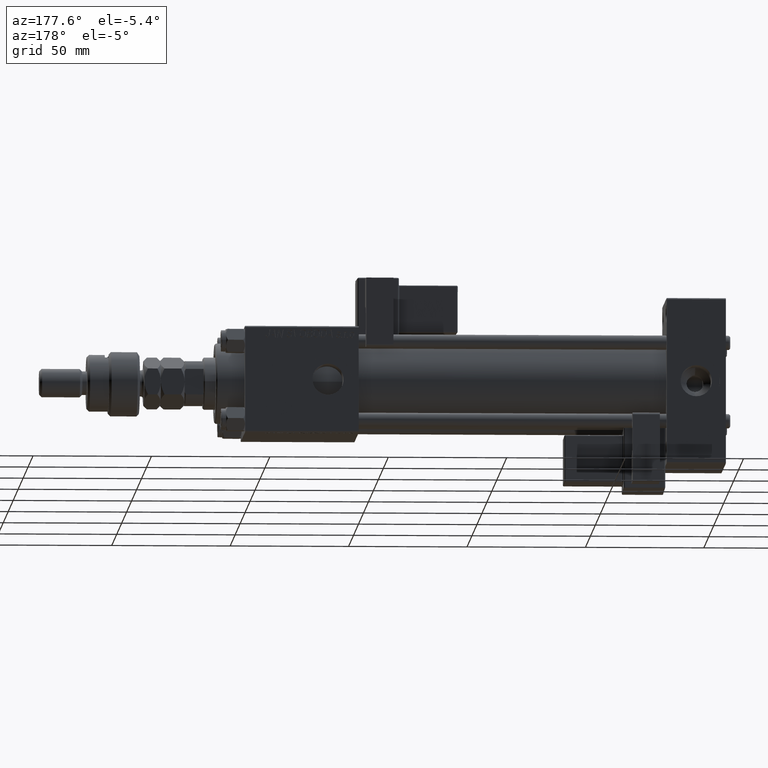
[diagram: clean part render]
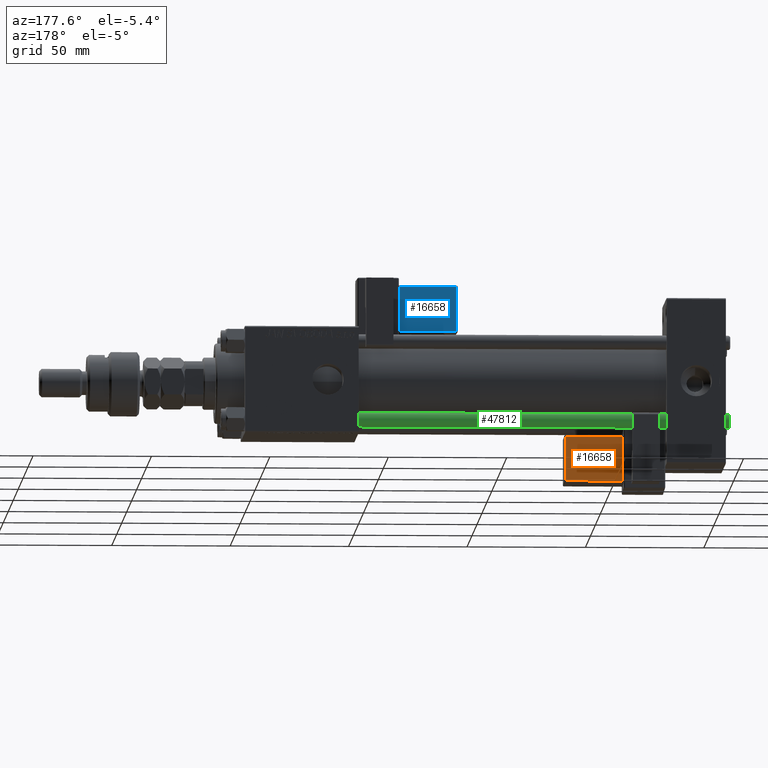
[diagram: same view with three faces highlighted in distinct colors, each labeled with its STEP entity id]
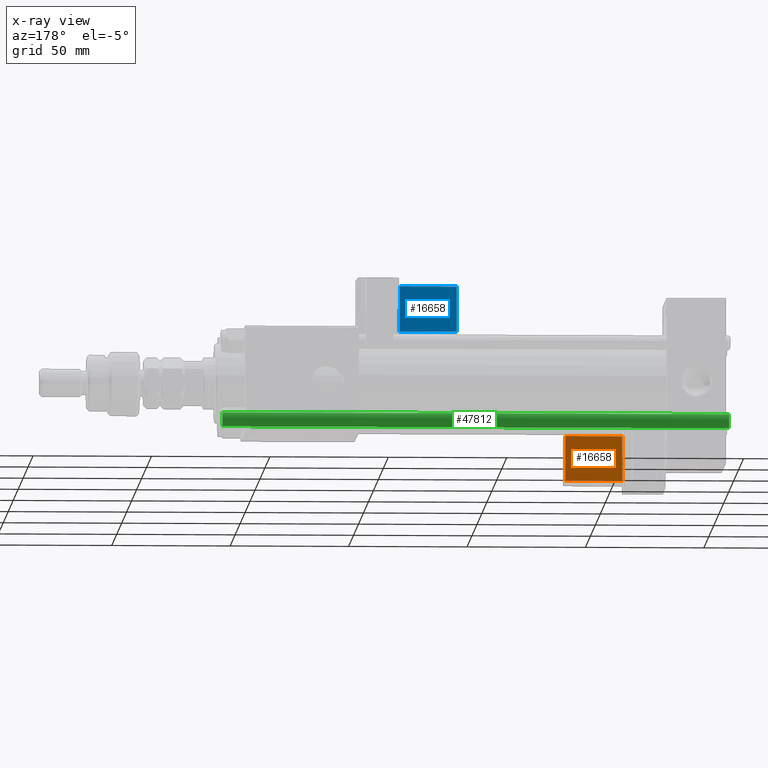
[diagram: x-ray of the same camera — body ghosted, the three highlighted faces saturated]
A machine part, auxiliary view with three faces highlighted in distinct colors.
The next image is the same camera in x-ray (body ghosted, the three faces saturated) — at least one of them is partly hidden behind the body in this view.
Their STEP definitions:

[orange] entity #16658 — the highlighted planar face has unit normal (0, -0.9994, -0.0353).
#1294 = DIRECTION ( 'NONE',  ( 1.734723475976807341E-16, -0.000000000000000000, -1.000000000000000000 ) ) ;
#3848 = ORIENTED_EDGE ( 'NONE', *, *, #5063, .T. ) ;
#4363 = CARTESIAN_POINT ( 'NONE',  ( 33.75000000000000000, -15.25000000000000000, 21.50000000000000355 ) ) ;
#4384 = EDGE_CURVE ( 'NONE', #24993, #46661, #35766, .T. ) ;
#4895 = VECTOR ( 'NONE', #34259, 1000.000000000000000 ) ;
#5063 = EDGE_CURVE ( 'NONE', #43074, #20846, #8944, .T. ) ;
#6064 = LINE ( 'NONE', #35823, #39503 ) ;
#6861 = CARTESIAN_POINT ( 'NONE',  ( 33.25000000000000000, -15.25000000000000000, 2.500000000000009326 ) ) ;
#8944 = LINE ( 'NONE', #25915, #4895 ) ;
#9380 = DIRECTION ( 'NONE',  ( 0.000000000000000000, -0.000000000000000000, -1.000000000000000000 ) ) ;
#9968 = DIRECTION ( 'NONE',  ( -1.000000000000000000, 0.000000000000000000, -1.334402673828313339E-16 ) ) ;
#16658 = ADVANCED_FACE ( 'NONE', ( #26906 ), #21627, .F. ) ;
#17041 = ORIENTED_EDGE ( 'NONE', *, *, #26236, .T. ) ;
#17444 = CARTESIAN_POINT ( 'NONE',  ( 33.75000000000000000, -15.25000000000000000, 22.00000000000000711 ) ) ;
#18581 = EDGE_CURVE ( 'NONE', #20846, #24993, #34391, .T. ) ;
#20558 = CARTESIAN_POINT ( 'NONE',  ( 33.25000000000000000, -15.25000000000000000, 21.50000000000000355 ) ) ;
#20846 = VERTEX_POINT ( 'NONE', #33451 ) ;
#21627 = PLANE ( 'NONE',  #41743 ) ;
#21811 = ORIENTED_EDGE ( 'NONE', *, *, #18581, .T. ) ;
#24598 = EDGE_LOOP ( 'NONE', ( #17041, #3848, #21811, #32092 ) ) ;
#24671 = DIRECTION ( 'NONE',  ( 1.000000000000000000, -0.000000000000000000, 1.334402673828313339E-16 ) ) ;
#24993 = VERTEX_POINT ( 'NONE', #20558 ) ;
#25915 = CARTESIAN_POINT ( 'NONE',  ( 9.250000000000001776, -15.25000000000000000, 22.00000000000000355 ) ) ;
#26236 = EDGE_CURVE ( 'NONE', #46661, #43074, #6064, .T. ) ;
#26906 = FACE_OUTER_BOUND ( 'NONE', #24598, .T. ) ;
#27392 = CARTESIAN_POINT ( 'NONE',  ( 9.250000000000003553, -15.25000000000000000, 2.500000000000005773 ) ) ;
#32092 = ORIENTED_EDGE ( 'NONE', *, *, #4384, .T. ) ;
#33451 = CARTESIAN_POINT ( 'NONE',  ( 9.250000000000001776, -15.25000000000000000, 21.50000000000000000 ) ) ;
#34162 = VECTOR ( 'NONE', #1294, 1000.000000000000000 ) ;
#34259 = DIRECTION ( 'NONE',  ( -1.334402673828313339E-16, 0.000000000000000000, 1.000000000000000000 ) ) ;
#34391 = LINE ( 'NONE', #4363, #37222 ) ;
#35766 = LINE ( 'NONE', #52775, #34162 ) ;
#35823 = CARTESIAN_POINT ( 'NONE',  ( 33.75000000000000000, -15.25000000000000000, 2.500000000000009326 ) ) ;
#37222 = VECTOR ( 'NONE', #24671, 1000.000000000000000 ) ;
#39503 = VECTOR ( 'NONE', #9968, 1000.000000000000000 ) ;
#41743 = AXIS2_PLACEMENT_3D ( 'NONE', #17444, #47514, #9380 ) ;
#43074 = VERTEX_POINT ( 'NONE', #27392 ) ;
#46661 = VERTEX_POINT ( 'NONE', #6861 ) ;
#47514 = DIRECTION ( 'NONE',  ( 0.000000000000000000, -1.000000000000000000, 0.000000000000000000 ) ) ;
#52775 = CARTESIAN_POINT ( 'NONE',  ( 33.25000000000000000, -15.25000000000000000, 2.000000000000008438 ) ) ;

[blue] entity #16658 — the highlighted planar face has unit normal (0, -0.9994, 0.0353).
#1294 = DIRECTION ( 'NONE',  ( 1.734723475976807341E-16, -0.000000000000000000, -1.000000000000000000 ) ) ;
#3848 = ORIENTED_EDGE ( 'NONE', *, *, #5063, .T. ) ;
#4363 = CARTESIAN_POINT ( 'NONE',  ( 33.75000000000000000, -15.25000000000000000, 21.50000000000000355 ) ) ;
#4384 = EDGE_CURVE ( 'NONE', #24993, #46661, #35766, .T. ) ;
#4895 = VECTOR ( 'NONE', #34259, 1000.000000000000000 ) ;
#5063 = EDGE_CURVE ( 'NONE', #43074, #20846, #8944, .T. ) ;
#6064 = LINE ( 'NONE', #35823, #39503 ) ;
#6861 = CARTESIAN_POINT ( 'NONE',  ( 33.25000000000000000, -15.25000000000000000, 2.500000000000009326 ) ) ;
#8944 = LINE ( 'NONE', #25915, #4895 ) ;
#9380 = DIRECTION ( 'NONE',  ( 0.000000000000000000, -0.000000000000000000, -1.000000000000000000 ) ) ;
#9968 = DIRECTION ( 'NONE',  ( -1.000000000000000000, 0.000000000000000000, -1.334402673828313339E-16 ) ) ;
#16658 = ADVANCED_FACE ( 'NONE', ( #26906 ), #21627, .F. ) ;
#17041 = ORIENTED_EDGE ( 'NONE', *, *, #26236, .T. ) ;
#17444 = CARTESIAN_POINT ( 'NONE',  ( 33.75000000000000000, -15.25000000000000000, 22.00000000000000711 ) ) ;
#18581 = EDGE_CURVE ( 'NONE', #20846, #24993, #34391, .T. ) ;
#20558 = CARTESIAN_POINT ( 'NONE',  ( 33.25000000000000000, -15.25000000000000000, 21.50000000000000355 ) ) ;
#20846 = VERTEX_POINT ( 'NONE', #33451 ) ;
#21627 = PLANE ( 'NONE',  #41743 ) ;
#21811 = ORIENTED_EDGE ( 'NONE', *, *, #18581, .T. ) ;
#24598 = EDGE_LOOP ( 'NONE', ( #17041, #3848, #21811, #32092 ) ) ;
#24671 = DIRECTION ( 'NONE',  ( 1.000000000000000000, -0.000000000000000000, 1.334402673828313339E-16 ) ) ;
#24993 = VERTEX_POINT ( 'NONE', #20558 ) ;
#25915 = CARTESIAN_POINT ( 'NONE',  ( 9.250000000000001776, -15.25000000000000000, 22.00000000000000355 ) ) ;
#26236 = EDGE_CURVE ( 'NONE', #46661, #43074, #6064, .T. ) ;
#26906 = FACE_OUTER_BOUND ( 'NONE', #24598, .T. ) ;
#27392 = CARTESIAN_POINT ( 'NONE',  ( 9.250000000000003553, -15.25000000000000000, 2.500000000000005773 ) ) ;
#32092 = ORIENTED_EDGE ( 'NONE', *, *, #4384, .T. ) ;
#33451 = CARTESIAN_POINT ( 'NONE',  ( 9.250000000000001776, -15.25000000000000000, 21.50000000000000000 ) ) ;
#34162 = VECTOR ( 'NONE', #1294, 1000.000000000000000 ) ;
#34259 = DIRECTION ( 'NONE',  ( -1.334402673828313339E-16, 0.000000000000000000, 1.000000000000000000 ) ) ;
#34391 = LINE ( 'NONE', #4363, #37222 ) ;
#35766 = LINE ( 'NONE', #52775, #34162 ) ;
#35823 = CARTESIAN_POINT ( 'NONE',  ( 33.75000000000000000, -15.25000000000000000, 2.500000000000009326 ) ) ;
#37222 = VECTOR ( 'NONE', #24671, 1000.000000000000000 ) ;
#39503 = VECTOR ( 'NONE', #9968, 1000.000000000000000 ) ;
#41743 = AXIS2_PLACEMENT_3D ( 'NONE', #17444, #47514, #9380 ) ;
#43074 = VERTEX_POINT ( 'NONE', #27392 ) ;
#46661 = VERTEX_POINT ( 'NONE', #6861 ) ;
#47514 = DIRECTION ( 'NONE',  ( 0.000000000000000000, -1.000000000000000000, 0.000000000000000000 ) ) ;
#52775 = CARTESIAN_POINT ( 'NONE',  ( 33.25000000000000000, -15.25000000000000000, 2.000000000000008438 ) ) ;

[green] entity #47812 — the highlighted cylindrical surface (edge-blend (fillet) strip) has radius 3 mm, axis along (-1, 0, 0).
#3452 = AXIS2_PLACEMENT_3D ( 'NONE', #49289, #45110, #36454 ) ;
#6859 = AXIS2_PLACEMENT_3D ( 'NONE', #29777, #16126, #20601 ) ;
#7726 = CARTESIAN_POINT ( 'NONE',  ( -3.000000000000000444, 0.000000000000000000, 0.5000000000000559552 ) ) ;
#9631 = CYLINDRICAL_SURFACE ( 'NONE', #15048, 3.000000000000000444 ) ;
#11447 = EDGE_CURVE ( 'NONE', #43295, #33345, #31755, .T. ) ;
#11455 = LINE ( 'NONE', #12292, #53742 ) ;
#12292 = CARTESIAN_POINT ( 'NONE',  ( 3.000000000000000444, 3.673940397442060361E-16, 215.0000000000000000 ) ) ;
#12540 = CARTESIAN_POINT ( 'NONE',  ( -3.000000000000000444, 0.000000000000000000, 215.0000000000000000 ) ) ;
#15048 = AXIS2_PLACEMENT_3D ( 'NONE', #38016, #34124, #55028 ) ;
#16126 = DIRECTION ( 'NONE',  ( 0.000000000000000000, 0.000000000000000000, -1.000000000000000000 ) ) ;
#16797 = VERTEX_POINT ( 'NONE', #44982 ) ;
#16935 = EDGE_CURVE ( 'NONE', #51181, #16797, #50590, .T. ) ;
#19298 = ORIENTED_EDGE ( 'NONE', *, *, #16935, .T. ) ;
#20020 = VECTOR ( 'NONE', #20048, 1000.000000000000000 ) ;
#20048 = DIRECTION ( 'NONE',  ( -0.000000000000000000, -0.000000000000000000, -1.000000000000000000 ) ) ;
#20601 = DIRECTION ( 'NONE',  ( 1.000000000000000000, 0.000000000000000000, 0.000000000000000000 ) ) ;
#21001 = CARTESIAN_POINT ( 'NONE',  ( -3.000000000000000444, 0.000000000000000000, 214.5000000000000000 ) ) ;
#21122 = ORIENTED_EDGE ( 'NONE', *, *, #11447, .T. ) ;
#23344 = ORIENTED_EDGE ( 'NONE', *, *, #25722, .F. ) ;
#25722 = EDGE_CURVE ( 'NONE', #43295, #16797, #11455, .T. ) ;
#26774 = CARTESIAN_POINT ( 'NONE',  ( 3.000000000000000444, 3.673940397442060361E-16, 214.5000000000000000 ) ) ;
#28060 = EDGE_CURVE ( 'NONE', #33345, #51181, #46490, .T. ) ;
#28701 = DIRECTION ( 'NONE',  ( -0.000000000000000000, -0.000000000000000000, -1.000000000000000000 ) ) ;
#29777 = CARTESIAN_POINT ( 'NONE',  ( 0.000000000000000000, 0.000000000000000000, 214.5000000000000000 ) ) ;
#30229 = EDGE_LOOP ( 'NONE', ( #23344, #21122, #53296, #19298 ) ) ;
#31755 = CIRCLE ( 'NONE', #6859, 3.000000000000000444 ) ;
#33345 = VERTEX_POINT ( 'NONE', #21001 ) ;
#34124 = DIRECTION ( 'NONE',  ( -0.000000000000000000, -0.000000000000000000, -1.000000000000000000 ) ) ;
#36454 = DIRECTION ( 'NONE',  ( 1.000000000000000000, 0.000000000000000000, 0.000000000000000000 ) ) ;
#38016 = CARTESIAN_POINT ( 'NONE',  ( 0.000000000000000000, 0.000000000000000000, 215.0000000000000000 ) ) ;
#43295 = VERTEX_POINT ( 'NONE', #26774 ) ;
#44982 = CARTESIAN_POINT ( 'NONE',  ( 3.000000000000000444, 3.673940397442060361E-16, 0.5000000000000559552 ) ) ;
#45110 = DIRECTION ( 'NONE',  ( -0.000000000000000000, -0.000000000000000000, 1.000000000000000000 ) ) ;
#46490 = LINE ( 'NONE', #12540, #20020 ) ;
#47762 = FACE_OUTER_BOUND ( 'NONE', #30229, .T. ) ;
#47812 = ADVANCED_FACE ( 'NONE', ( #47762 ), #9631, .T. ) ;
#49289 = CARTESIAN_POINT ( 'NONE',  ( 0.000000000000000000, 0.000000000000000000, 0.5000000000000559552 ) ) ;
#50590 = CIRCLE ( 'NONE', #3452, 3.000000000000000444 ) ;
#51181 = VERTEX_POINT ( 'NONE', #7726 ) ;
#53296 = ORIENTED_EDGE ( 'NONE', *, *, #28060, .T. ) ;
#53742 = VECTOR ( 'NONE', #28701, 1000.000000000000000 ) ;
#55028 = DIRECTION ( 'NONE',  ( -1.000000000000000000, 0.000000000000000000, 0.000000000000000000 ) ) ;